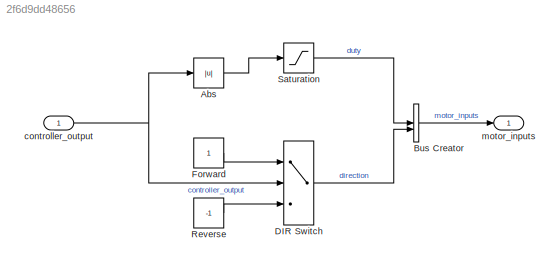
MODEL slx_2f6d9dd48656
KIND model
CONFIG AbsTol = auto
CONFIG EnableMultiTasking = on
CONFIG FixedStep = Ts
CONFIG MaxStep = auto
CONFIG MinStep = auto
CONFIG RelTol = 1e-3
CONFIG SampleTimeConstraint = Unconstrained
CONFIG SolverName = FixedStepDiscrete
CONFIG StartTime = 0.0
CONFIG StopTime = 10.0
BLOCK [Abs] Abs
  SaturateOnIntegerOverflow = off
BLOCK [BusCreator] Bus Creator
  DisplayOption = bar
  InheritFromInputs = on
  Inputs = 2
  NonVirtualBus = on
  OutDataTypeStr = Bus: motor_inputs_bus
BLOCK [Switch] DIR Switch
  AttributesFormatString = Criteria: %<Criteria>\nThreshold: %<Threshold>
  InputSameDT = off
  SaturateOnIntegerOverflow = off
BLOCK [Constant] Forward
  OutDataTypeStr = double
BLOCK [Constant] Reverse
  OutDataTypeStr = double
  Value = -1
BLOCK [Saturate] Saturation
  AttributesFormatString = %<LowerLimit> < duty < %<UpperLimit>
  LowerLimit = 0
  UpperLimit = 1
BLOCK [Inport] controller_output
  OutDataTypeStr = double
  PortDimensions = 1
  SampleTime = Ts
  SamplingMode = Sample based
  SignalType = real
BLOCK [Outport] motor_inputs
  BusOutputAsStruct = on
  OutDataTypeStr = Bus: motor_inputs_bus
  SampleTime = Ts
  VectorParamsAs1DForOutWhenUnconnected = off
LINE Abs:1 -> Saturation:1
LINE Bus Creator:1 -> motor_inputs:1
LINE DIR Switch:1 -> Bus Creator:2
LINE Forward:1 -> DIR Switch:1
LINE Reverse:1 -> DIR Switch:3
LINE Saturation:1 -> Bus Creator:1
NET controller_output:1 -> Abs:1, DIR Switch:2
note: NET lines group one-source signal fan-out (src -> all destinations, sorted); 1:1 wires keep LINE
